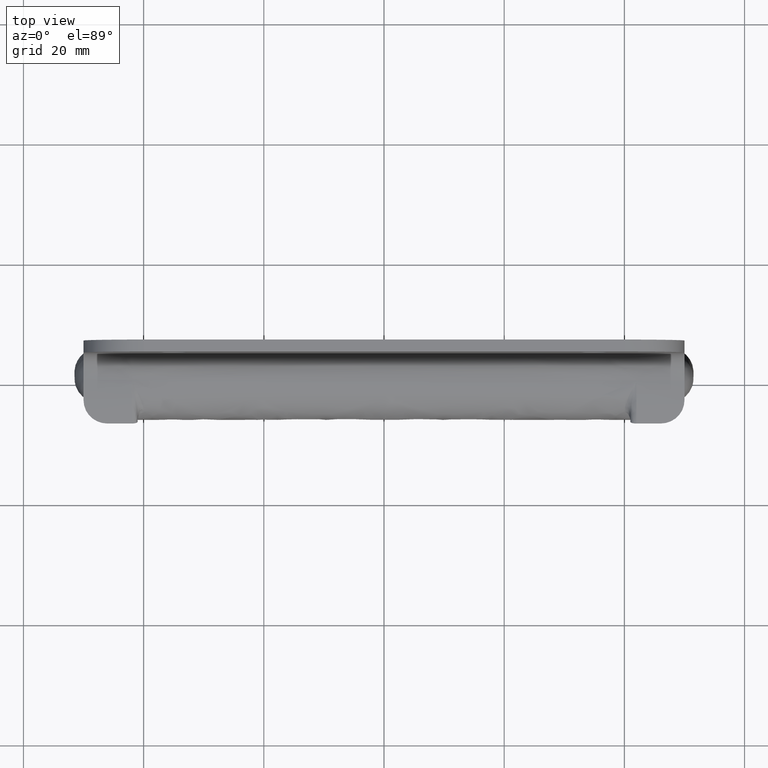
[diagram: clean part render]
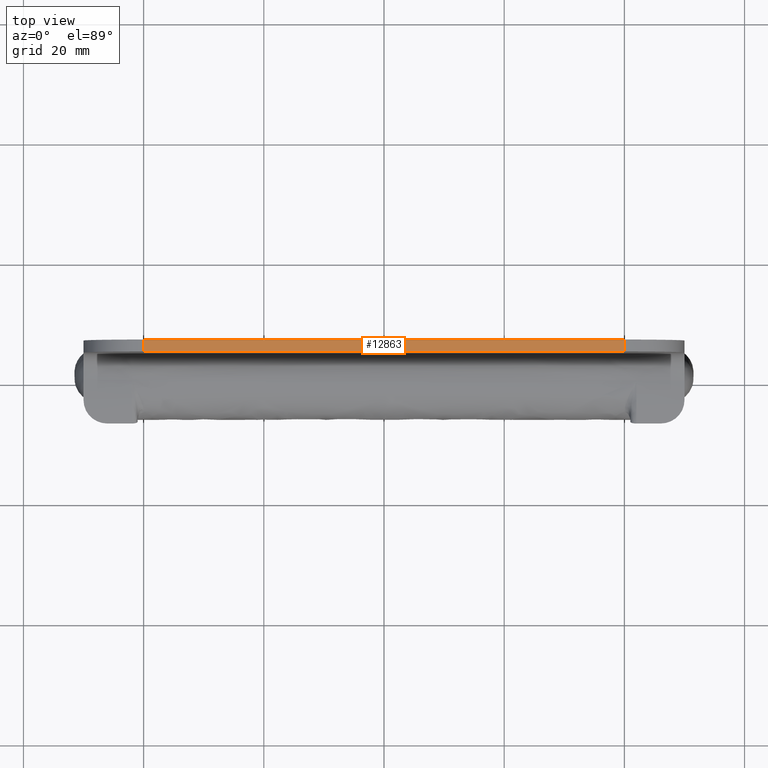
[diagram: same view with one face highlighted and labeled with its STEP entity id]
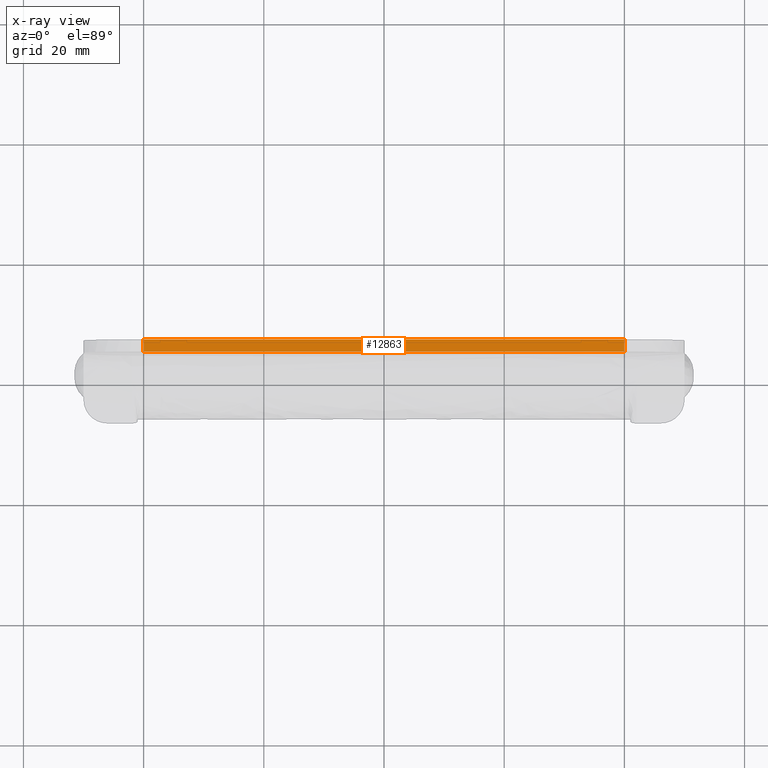
[diagram: x-ray of the same camera — body ghosted, the highlighted face saturated]
A machine part, top view. The second image highlights one B-rep face of the part: STEP entity #12863.
The next image is the same camera in x-ray: the body ghosted, the highlighted face saturated — about 0% of this face is hidden behind the body in this view.
In plain terms, the highlighted face is a freeform B-spline surface patch.
Its self-contained STEP definition (entity closure, byte-faithful):
#12219=CARTESIAN_POINT('',(40.0,6.500000000000000,21.500000000000000));
#12220=VERTEX_POINT('',#12219);
#12239=CARTESIAN_POINT('',(40.0,4.500000000000000,21.500000000000000));
#12240=VERTEX_POINT('',#12239);
#12241=CARTESIAN_POINT('',(40.0,4.500000000000000,21.500000000000000));
#12242=CARTESIAN_POINT('',(40.0,6.500000000000000,21.500000000000000));
#12243=QUASI_UNIFORM_CURVE('',1,(#12241,#12242),.UNSPECIFIED.,.F.,.U.);
#12244=EDGE_CURVE('',#12240,#12220,#12243,.T.);
#12287=CARTESIAN_POINT('',(-40.0,6.500000000000000,21.500000000000000));
#12288=VERTEX_POINT('',#12287);
#12311=CARTESIAN_POINT('',(-40.0,4.500000000000000,21.500000000000000));
#12312=VERTEX_POINT('',#12311);
#12328=CARTESIAN_POINT('',(-40.0,6.500000000000000,21.500000000000000));
#12329=CARTESIAN_POINT('',(-40.0,4.500000000000000,21.500000000000000));
#12330=QUASI_UNIFORM_CURVE('',1,(#12328,#12329),.UNSPECIFIED.,.F.,.U.);
#12331=EDGE_CURVE('',#12288,#12312,#12330,.T.);
#12844=CARTESIAN_POINT('',(-43.995999844944478,4.400100003876387,21.500000000000000));
#12845=CARTESIAN_POINT('',(43.996001990711690,4.400100003876387,21.500000000000000));
#12846=CARTESIAN_POINT('',(-43.995999844944478,6.599900049767793,21.500000000000000));
#12847=CARTESIAN_POINT('',(43.996001990711690,6.599900049767793,21.500000000000000));
#12848=B_SPLINE_SURFACE_WITH_KNOTS('',1,1,((#12844,#12846),(#12845,#12847)),.UNSPECIFIED.,.F.,.F.,.U.,(2,2),(2,2),(0.0,87.992001835656168),(0.0,2.199800045891406),.UNSPECIFIED.);
#12849=CARTESIAN_POINT('',(40.0,6.500000000000000,21.500000000000000));
#12850=CARTESIAN_POINT('',(-40.0,6.500000000000000,21.500000000000000));
#12851=QUASI_UNIFORM_CURVE('',1,(#12849,#12850),.UNSPECIFIED.,.F.,.U.);
#12852=EDGE_CURVE('',#12220,#12288,#12851,.T.);
#12853=ORIENTED_EDGE('',*,*,#12852,.T.);
#12854=ORIENTED_EDGE('',*,*,#12331,.T.);
#12855=CARTESIAN_POINT('',(40.0,4.500000000000000,21.500000000000000));
#12856=CARTESIAN_POINT('',(-40.0,4.500000000000000,21.500000000000000));
#12857=QUASI_UNIFORM_CURVE('',1,(#12855,#12856),.UNSPECIFIED.,.F.,.U.);
#12858=EDGE_CURVE('',#12240,#12312,#12857,.T.);
#12859=ORIENTED_EDGE('',*,*,#12858,.F.);
#12860=ORIENTED_EDGE('',*,*,#12244,.T.);
#12861=EDGE_LOOP('',(#12853,#12854,#12859,#12860));
#12862=FACE_OUTER_BOUND('',#12861,.T.);
#12863=ADVANCED_FACE('',(#12862),#12848,.T.);